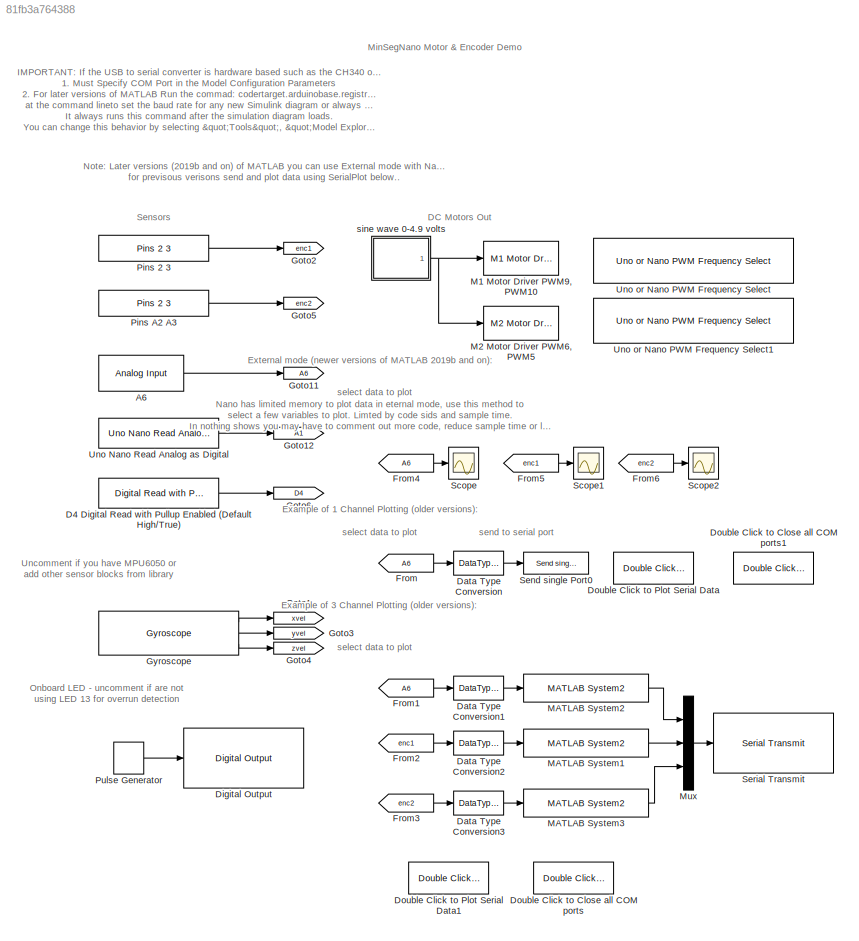
MODEL slx_81fb3a764388
KIND model
CONFIG AbsTol = auto
CONFIG FixedStep = auto
CONFIG MaxStep = auto
CONFIG MinStep = auto
CONFIG PostLoadFcn = try, \ncodertarget.arduinobase.registry.setBaudRate(gcs,115200)\ndisp('baud rate set to 115200 for external mode hardware serial')\nbaudrate='set_to_115200'\ncatch\ndisp('baud rate setting not needed in this version')\nend
CONFIG RelTol = 1e-3
CONFIG SampleTimeConstraint = Unconstrained
CONFIG Solver = ode45
CONFIG SolverMode = Auto
CONFIG SolverName = ode45
CONFIG StartTime = 0.0
CONFIG StopTime = 10.0
BLOCK [Reference] A6  REF=arduinolib/Analog Input
  Ports = [0, 1]
  SourceBlock = arduinolib/Analog Input
  SourceType = Arduino Analog Input
  blockPlatform = arduino
  pinNumber = 6
  sampleTime = -1
BLOCK [Reference] D4 Digital Read with Pullup Enabled (Default High//True)  REF=RASPlib/Digital Read with Pullup Enabled
  Pin = 4
  Ports = [0, 1]
  SourceBlock = RASPlib/Digital Read with Pullup Enabled
  SourceType = soDigitalPullupRead
BLOCK [DataTypeConversion] Data Type Conversion
  Commented = on
  OutDataTypeStr = single
  RndMeth = Floor
  SaturateOnIntegerOverflow = off
BLOCK [DataTypeConversion] Data Type Conversion1
  OutDataTypeStr = single
  RndMeth = Floor
  SaturateOnIntegerOverflow = off
BLOCK [DataTypeConversion] Data Type Conversion2
  OutDataTypeStr = single
  RndMeth = Floor
  SaturateOnIntegerOverflow = off
BLOCK [DataTypeConversion] Data Type Conversion3
  OutDataTypeStr = single
  RndMeth = Floor
  SaturateOnIntegerOverflow = off
BLOCK [Reference] Digital Output  REF=arduinolib/Digital Output
  Commented = on
  Ports = [1]
  SourceBlock = arduinolib/Digital Output
  SourceType = Arduino Digital Output
  blockPlatform = arduino
  pinNumber = 13
BLOCK [Reference] Double Click to Close all COM ports  REF=RASPlib/Double Click to
Close all COM ports
  Ports = []
  SourceBlock = RASPlib/Double Click to\nClose all COM ports
BLOCK [Reference] Double Click to Close all COM ports1  REF=RASPlib/Double Click to
Close all COM ports
  Commented = on
  Ports = []
  SourceBlock = RASPlib/Double Click to\nClose all COM ports
BLOCK [Reference] Double Click to Plot Serial Data  REF=RASPlib/Double Click to
Plot Serial Data
  BaudRate = 9600
  COMport = 89
  Commented = on
  DataType = single
  Ncx = 1
  NumSamples = 500
  Ports = []
  SourceBlock = RASPlib/Double Click to\nPlot Serial Data
BLOCK [Reference] Double Click to Plot Serial Data1  REF=RASPlib/Double Click to
Plot Serial Data
  BaudRate = 9600
  COMport = 89
  DataType = single
  Ncx = 3
  NumSamples = 500
  Ports = []
  SourceBlock = RASPlib/Double Click to\nPlot Serial Data
BLOCK [From] From
  Commented = on
  GotoTag = A6
BLOCK [From] From1
  GotoTag = A6
BLOCK [From] From2
  GotoTag = enc1
BLOCK [From] From3
  GotoTag = enc2
BLOCK [From] From4
  Commented = on
  GotoTag = A6
BLOCK [From] From5
  Commented = on
  GotoTag = enc1
BLOCK [From] From6
  Commented = on
  GotoTag = enc2
BLOCK [Goto] Goto1
  Commented = on
  GotoTag = xvel
BLOCK [Goto] Goto11
  GotoTag = A6
BLOCK [Goto] Goto12
  GotoTag = A1
BLOCK [Goto] Goto2
  GotoTag = enc1
BLOCK [Goto] Goto3
  Commented = on
  GotoTag = yvel
BLOCK [Goto] Goto4
  Commented = on
  GotoTag = zvel
BLOCK [Goto] Goto5
  GotoTag = enc2
BLOCK [Goto] Goto6
  GotoTag = D4
BLOCK [Reference] Gyroscope  REF=RASPlib/Gyroscope
  Commented = on
  DLPFmode = 0
  Ports = [0, 3]
  SourceBlock = RASPlib/Gyroscope
  SourceType = soMPU6050Gyro
BLOCK [Reference] M1 Motor Driver PWM9, PWM10  REF=MinSegLibrary_MinSegNano/M1 Motor Driver
PWM9, PWM10
  Ports = [1]
  SourceBlock = MinSegLibrary_MinSegNano/M1 Motor Driver\nPWM9, PWM10
  Voffset = 0
  Vsupply = 4.9
BLOCK [Reference] M2 Motor Driver PWM6, PWM5  REF=MinSegLibrary_MinSegNano/M2 Motor Driver
PWM6, PWM5
  Ports = [1]
  SourceBlock = MinSegLibrary_MinSegNano/M2 Motor Driver\nPWM6, PWM5
  Voffset = 0
  Vsupply = 4.9
BLOCK [Reference] MATLAB System1  REF=RASPlib/Send single Port0/MATLAB System2
  Ports = [1, 1]
  SimulateUsing = Code generation
  SourceBlock = RASPlib/Send single Port0/MATLAB System2
  SourceType = so_float2bytes
BLOCK [Reference] MATLAB System2  REF=RASPlib/Send single Port0/MATLAB System2
  Ports = [1, 1]
  SimulateUsing = Code generation
  SourceBlock = RASPlib/Send single Port0/MATLAB System2
  SourceType = so_float2bytes
BLOCK [Reference] MATLAB System3  REF=RASPlib/Send single Port0/MATLAB System2
  Ports = [1, 1]
  SimulateUsing = Code generation
  SourceBlock = RASPlib/Send single Port0/MATLAB System2
  SourceType = so_float2bytes
BLOCK [Mux] Mux
  DisplayOption = bar
  Inputs = 3
  Ports = [3, 1]
BLOCK [Reference] Pins 2 3  REF=MinSegLibrary_MinSegNano/Pins 2 3
  Encoder = 0
  PinA = 2
  PinB = 3
  Ports = [0, 1]
  SourceBlock = MinSegLibrary_MinSegNano/Pins 2 3
  SourceType = Encoder_arduino_uno_nano
BLOCK [Reference] Pins A2 A3  REF=MinSegLibrary_MinSegNano/Pins 2 3
  Encoder = 4
  PinA = 16
  PinB = 17
  Ports = [0, 1]
  SourceBlock = MinSegLibrary_MinSegNano/Pins 2 3
  SourceType = Encoder_arduino_uno_nano
BLOCK [DiscretePulseGenerator] Pulse Generator
  Commented = on
  Period = 10
  Ports = [0, 1]
  PulseType = Time based
  PulseWidth = 5
BLOCK [Scope] Scope
  Commented = on
  Floating = off
  NumInputPorts = 1
  Ports = [1]
BLOCK [Scope] Scope1
  Commented = on
  Floating = off
  NumInputPorts = 1
  Ports = [1]
  SaveName = ScopeData1
BLOCK [Scope] Scope2
  Commented = on
  Floating = off
  NumInputPorts = 1
  Ports = [1]
  SaveName = ScopeData2
BLOCK [Reference] Send single Port0  REF=RASPlib/Send single Port0
  Commented = on
  Parameter1 = 0
  Ports = [1]
  SourceBlock = RASPlib/Send single Port0
BLOCK [Reference] Serial Transmit  REF=arduinolib/Serial Transmit
  Ports = [1]
  SourceBlock = arduinolib/Serial Transmit
  SourceType = Arduino Serial Transmit
  blockPlatform = arduino
  portNumber = 0
BLOCK [Reference] Uno Nano Read Analog as Digital  REF=RASPlib/Uno Nano Read Analog as Digital
  Pin = 1
  Ports = [0, 1]
  SourceBlock = RASPlib/Uno Nano Read Analog as Digital
  SourceType = soDAnalogReadNano
BLOCK [Reference] Uno or Nano PWM Frequency Select  REF=RASPlib/Uno or Nano PWM Frequency Select
  Commented = on
  Frequency = 490Hz (Timer 0: 976Hz)
  Ports = []
  SourceBlock = RASPlib/Uno or Nano PWM Frequency Select
  Timer = 1 - pins 9, 10
BLOCK [Reference] Uno or Nano PWM Frequency Select1  REF=RASPlib/Uno or Nano PWM Frequency Select
  Commented = on
  Frequency = 490Hz (Timer 0: 976Hz)
  Ports = []
  SourceBlock = RASPlib/Uno or Nano PWM Frequency Select
  Timer = 0 - pins 5, 6
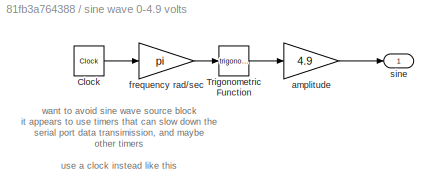
BLOCK [SubSystem] sine wave 0-4.9 volts
  Ports = [0, 1]
  RequestExecContextInheritance = off
BLOCK [Clock] sine wave 0-4.9 volts/Clock
BLOCK [Trigonometry] sine wave 0-4.9 volts/Trigonometric Function
  Ports = [1, 1]
BLOCK [Gain] sine wave 0-4.9 volts/amplitude
  Gain = 4.9
  OutDataTypeStr = Inherit: Inherit via internal rule
  ParamDataTypeStr = Inherit: Inherit via internal rule
  SaturateOnIntegerOverflow = off
BLOCK [Gain] sine wave 0-4.9 volts/frequency rad//sec
  Gain = pi
  OutDataTypeStr = Inherit: Inherit via internal rule
  ParamDataTypeStr = Inherit: Inherit via internal rule
  SaturateOnIntegerOverflow = off
BLOCK [Outport] sine wave 0-4.9 volts/sine
  IconDisplay = Port number
ANNOTATION (root): External mode (newer versions of MATLAB 2019b and on):
ANNOTATION (root): Example of 1 Channel Plotting (older versions):
ANNOTATION (root): Example of 3 Channel Plotting (older versions):
ANNOTATION (root): IMPORTANT : If the USB to serial converter is hardware based such as the CH340 or the PL2303 you must: 1. Must Specify COM Port in the Model Configuration Parameters 2. For later versions of MATLAB Run the commad: codertarget.arduinobase.registry.setBaudRate(gcs,115200) at the command lineto set the baud rate for any new Simulink diagram or always use this file to start new projects. It always run...<+268ch>
ANNOTATION (root): DC Motors Out
ANNOTATION (root): MinSegNano Motor & Encoder Demo
ANNOTATION (root): Nano has limited memory to plot data in eternal mode, use this method to select a few variables to plot. Limted by code sids and sample time. In nothing shows you may have to comment out more code, reduce sample time or log less data
ANNOTATION (root): Note: Later versions (2019b and on) of MATLAB you can use External mode with Nano for previsous verisons send and plot data using SerialPlot below..
ANNOTATION (root): Onboard LED - uncomment if are not using LED 13 for overrun detection
ANNOTATION (root): Sensors
ANNOTATION (root): Uncomment if you have MPU6050 or add other sensor blocks from library
ANNOTATION (root): select data to plot
ANNOTATION (root): send to serial port
ANNOTATION sine wave 0-4.9 volts: want to avoid sine wave source block it appears to use timers that can slow down the serial port data transimission, and maybe other timers use a clock instead like this
LINE A6:1 -> Goto11:1
LINE D4 Digital Read with Pullup Enabled (Default High//True):1 -> Goto6:1
LINE Data Type Conversion1:1 -> MATLAB System2:1
LINE Data Type Conversion2:1 -> MATLAB System1:1
LINE Data Type Conversion3:1 -> MATLAB System3:1
LINE Data Type Conversion:1 -> Send single Port0:1
LINE From1:1 -> Data Type Conversion1:1
LINE From2:1 -> Data Type Conversion2:1
LINE From3:1 -> Data Type Conversion3:1
LINE From4:1 -> Scope:1
LINE From5:1 -> Scope1:1
LINE From6:1 -> Scope2:1
LINE From:1 -> Data Type Conversion:1
LINE Gyroscope:1 -> Goto1:1
LINE Gyroscope:2 -> Goto3:1
LINE Gyroscope:3 -> Goto4:1
LINE MATLAB System1:1 -> Mux:2
LINE MATLAB System2:1 -> Mux:1
LINE MATLAB System3:1 -> Mux:3
LINE Mux:1 -> Serial Transmit:1
LINE Pins 2 3:1 -> Goto2:1
LINE Pins A2 A3:1 -> Goto5:1
LINE Pulse Generator:1 -> Digital Output:1
LINE Uno Nano Read Analog as Digital:1 -> Goto12:1
LINE sine wave 0-4.9 volts/Clock:1 -> sine wave 0-4.9 volts/frequency rad//sec:1
LINE sine wave 0-4.9 volts/Trigonometric Function:1 -> sine wave 0-4.9 volts/amplitude:1
LINE sine wave 0-4.9 volts/amplitude:1 -> sine wave 0-4.9 volts/sine:1
LINE sine wave 0-4.9 volts/frequency rad//sec:1 -> sine wave 0-4.9 volts/Trigonometric Function:1
NET sine wave 0-4.9 volts:1 -> M1 Motor Driver PWM9, PWM10:1, M2 Motor Driver PWM6, PWM5:1
note: NET lines group one-source signal fan-out (src -> all destinations, sorted); 1:1 wires keep LINE
